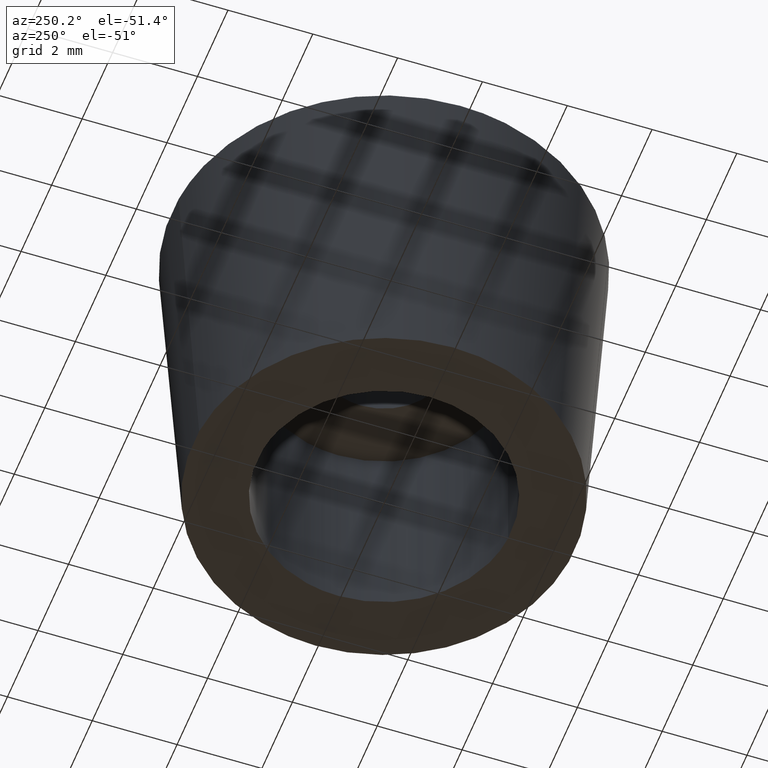
[diagram: clean part render]
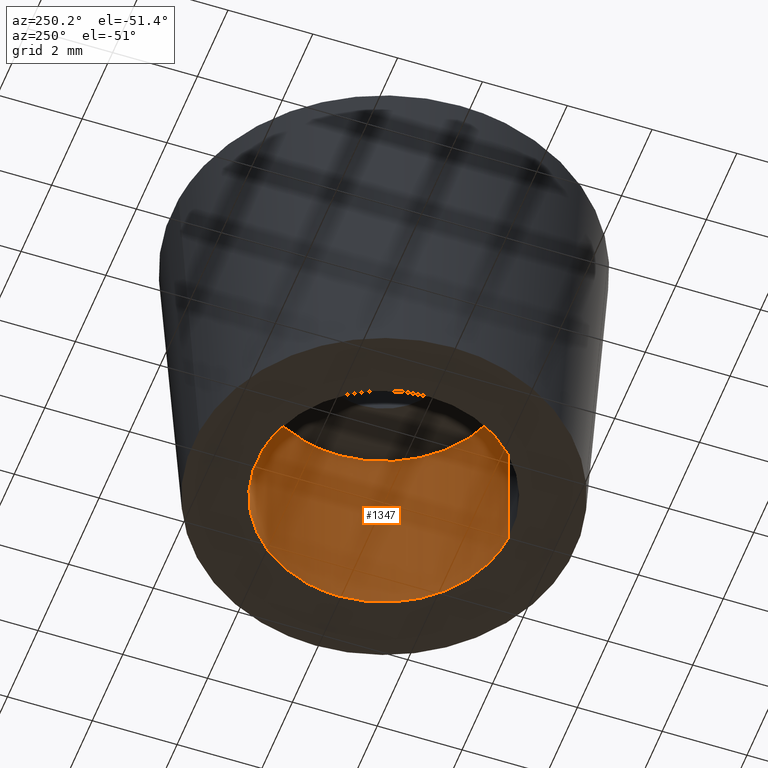
[diagram: same view with one face highlighted and labeled with its STEP entity id]
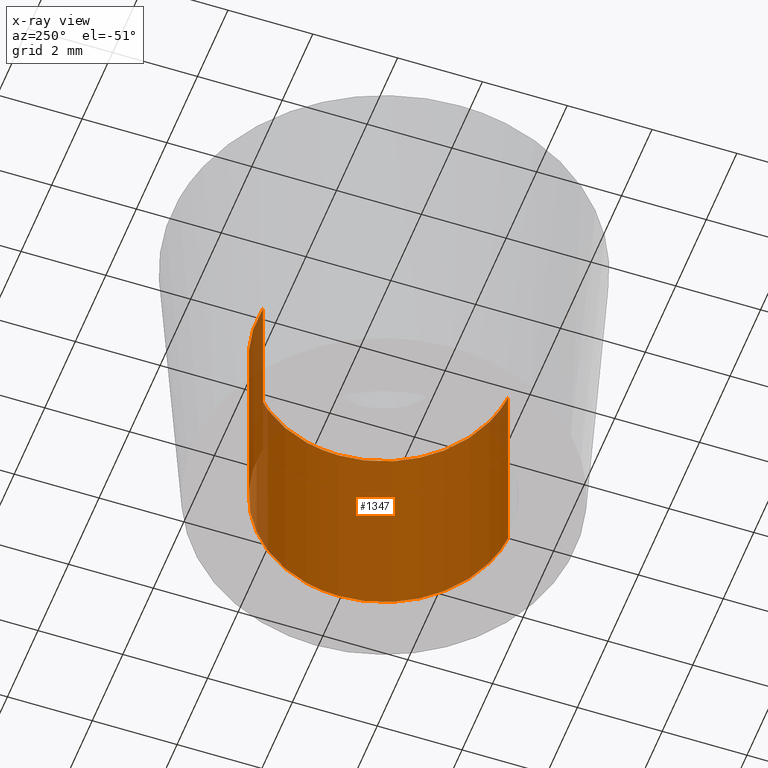
[diagram: x-ray of the same camera — body ghosted, the highlighted face saturated]
A machine part, auxiliary view. The second image highlights one B-rep face of the part: STEP entity #1347.
The next image is the same camera in x-ray: the body ghosted, the highlighted face saturated — about 7% of this face is hidden behind the body in this view.
In plain terms, the highlighted face is a freeform B-spline surface patch.
Its self-contained STEP definition (entity closure, byte-faithful):
#1245=CARTESIAN_POINT('',(-0.354102703970275,2.979028579091000,5.125000000000002));
#1246=CARTESIAN_POINT('',(-0.268844185913933,2.989162846345817,5.125000000000001));
#1247=CARTESIAN_POINT('',(-0.183145618604571,2.994404395265600,5.125000000000001));
#1248=CARTESIAN_POINT('',(2.811258776661029,3.177550013870171,5.125000000000001));
#1249=CARTESIAN_POINT('',(2.994404395265600,0.183145618604571,5.125000000000001));
#1250=CARTESIAN_POINT('',(3.177550013870171,-2.811258776661029,5.125000000000001));
#1251=CARTESIAN_POINT('',(0.183145618604571,-2.994404395265600,5.125000000000001));
#1252=CARTESIAN_POINT('',(-0.354102703970275,2.979028579091000,-0.128125000000000));
#1253=CARTESIAN_POINT('',(-0.268844185913933,2.989162846345817,-0.128125000000000));
#1254=CARTESIAN_POINT('',(-0.183145618604571,2.994404395265600,-0.128125000000000));
#1255=CARTESIAN_POINT('',(2.811258776661029,3.177550013870171,-0.128125000000000));
#1256=CARTESIAN_POINT('',(2.994404395265600,0.183145618604571,-0.128125000000000));
#1257=CARTESIAN_POINT('',(3.177550013870171,-2.811258776661029,-0.128125000000000));
#1258=CARTESIAN_POINT('',(0.183145618604571,-2.994404395265600,-0.128125000000000));
#1266=(BOUNDED_SURFACE()B_SPLINE_SURFACE(2,1,((#1245,#1252),(#1246,#1253),(#1247,#1254),(#1248,#1255),(#1249,#1256),(#1250,#1257),(#1251,#1258)),.UNSPECIFIED.,.F.,.F.,.U.)B_SPLINE_SURFACE_WITH_KNOTS((3,2,2,3),(2,2),(0.0,0.198822509939086,5.169385258416225,10.139948006893370),(0.0,5.253125000000002),.UNSPECIFIED.)GEOMETRIC_REPRESENTATION_ITEM()RATIONAL_B_SPLINE_SURFACE(((0.977505800795127,0.977505800795127),(0.988284271247462,0.988284271247462),(1.0,1.0),(0.707106781186548,0.707106781186548),(1.0,1.0),(0.707106781186548,0.707106781186548),(1.0,1.0)))REPRESENTATION_ITEM('')SURFACE());
#1267=CARTESIAN_POINT('',(-0.354099495451284,2.979028960468613,-5.969898E-015));
#1268=VERTEX_POINT('',#1267);
#1269=CARTESIAN_POINT('',(3.0,0.0,0.0));
#1270=VERTEX_POINT('',#1269);
#1271=CARTESIAN_POINT('',(-0.354099495451284,2.979028960468613,-5.969898E-015));
#1272=CARTESIAN_POINT('',(-0.177670737736467,3.0,0.0));
#1273=CARTESIAN_POINT('',(0.0,3.0,0.0));
#1274=CARTESIAN_POINT('',(3.0,3.0,0.0));
#1275=CARTESIAN_POINT('',(3.0,0.0,0.0));
#1283=(BOUNDED_CURVE()B_SPLINE_CURVE(2,(#1271,#1272,#1273,#1274,#1275),.UNSPECIFIED.,.F.,.U.)B_SPLINE_CURVE_WITH_KNOTS((3,2,3),(0.229562655538124,0.250000000000000,0.500000000000000),.UNSPECIFIED.)CURVE()GEOMETRIC_REPRESENTATION_ITEM()RATIONAL_B_SPLINE_CURVE((0.956027110959706,0.976056161586248,1.0,0.707106781186548,1.0))REPRESENTATION_ITEM(''));
#1284=EDGE_CURVE('',#1268,#1270,#1283,.T.);
#1285=ORIENTED_EDGE('',*,*,#1284,.T.);
#1286=CARTESIAN_POINT('',(0.183142456747576,-2.994404588649708,-6.543377E-015));
#1287=VERTEX_POINT('',#1286);
#1288=CARTESIAN_POINT('',(3.0,0.0,0.0));
#1289=CARTESIAN_POINT('',(2.999999999999999,-2.822121186223181,0.0));
#1290=CARTESIAN_POINT('',(0.183142456747576,-2.994404588649708,-6.543377E-015));
#1298=(BOUNDED_CURVE()B_SPLINE_CURVE(2,(#1288,#1289,#1290),.UNSPECIFIED.,.F.,.U.)B_SPLINE_CURVE_WITH_KNOTS((3,3),(0.500000000000000,0.739333144437917),.UNSPECIFIED.)CURVE()GEOMETRIC_REPRESENTATION_ITEM()RATIONAL_B_SPLINE_CURVE((1.0,0.719603779827335,0.976072432154112))REPRESENTATION_ITEM(''));
#1299=EDGE_CURVE('',#1270,#1287,#1298,.T.);
#1300=ORIENTED_EDGE('',*,*,#1299,.T.);
#1301=CARTESIAN_POINT('',(0.183142495778265,-2.994404586262570,4.999999999999999));
#1302=VERTEX_POINT('',#1301);
#1303=CARTESIAN_POINT('',(0.183142495778265,-2.994404586262570,4.999999999999999));
#1304=CARTESIAN_POINT('',(0.183142456747576,-2.994404588649708,-6.543377E-015));
#1305=QUASI_UNIFORM_CURVE('',1,(#1303,#1304),.UNSPECIFIED.,.F.,.U.);
#1306=EDGE_CURVE('',#1302,#1287,#1305,.T.);
#1307=ORIENTED_EDGE('',*,*,#1306,.F.);
#1308=CARTESIAN_POINT('',(3.0,0.0,5.0));
#1309=VERTEX_POINT('',#1308);
#1310=CARTESIAN_POINT('',(3.0,0.0,5.0));
#1311=CARTESIAN_POINT('',(3.000000000000001,-2.822121149369394,5.0));
#1312=CARTESIAN_POINT('',(0.183142495778265,-2.994404586262570,4.999999999999999));
#1320=(BOUNDED_CURVE()B_SPLINE_CURVE(2,(#1310,#1311,#1312),.UNSPECIFIED.,.F.,.U.)B_SPLINE_CURVE_WITH_KNOTS((3,3),(0.500000000000000,0.739333142188848),.UNSPECIFIED.)CURVE()GEOMETRIC_REPRESENTATION_ITEM()RATIONAL_B_SPLINE_CURVE((1.0,0.719603782462283,0.976072427333922))REPRESENTATION_ITEM(''));
#1321=EDGE_CURVE('',#1309,#1302,#1320,.T.);
#1322=ORIENTED_EDGE('',*,*,#1321,.F.);
#1323=CARTESIAN_POINT('',(-0.354099535051968,2.979028955761558,5.0));
#1324=VERTEX_POINT('',#1323);
#1325=CARTESIAN_POINT('',(-0.354099535051968,2.979028955761558,5.0));
#1326=CARTESIAN_POINT('',(-0.177670757746130,3.0,5.0));
#1327=CARTESIAN_POINT('',(0.0,3.0,5.0));
#1328=CARTESIAN_POINT('',(3.0,3.0,5.000000000000001));
#1329=CARTESIAN_POINT('',(3.0,0.0,5.0));
#1337=(BOUNDED_CURVE()B_SPLINE_CURVE(2,(#1325,#1326,#1327,#1328,#1329),.UNSPECIFIED.,.F.,.U.)B_SPLINE_CURVE_WITH_KNOTS((3,2,3),(0.229562653291538,0.250000000000000,0.500000000000000),.UNSPECIFIED.)CURVE()GEOMETRIC_REPRESENTATION_ITEM()RATIONAL_B_SPLINE_CURVE((0.956027106556297,0.976056158954208,1.0,0.707106781186548,1.0))REPRESENTATION_ITEM(''));
#1338=EDGE_CURVE('',#1324,#1309,#1337,.T.);
#1339=ORIENTED_EDGE('',*,*,#1338,.F.);
#1340=CARTESIAN_POINT('',(-0.354099535051968,2.979028955761558,5.0));
#1341=CARTESIAN_POINT('',(-0.354099495451284,2.979028960468613,-5.969898E-015));
#1342=QUASI_UNIFORM_CURVE('',1,(#1340,#1341),.UNSPECIFIED.,.F.,.U.);
#1343=EDGE_CURVE('',#1324,#1268,#1342,.T.);
#1344=ORIENTED_EDGE('',*,*,#1343,.T.);
#1345=EDGE_LOOP('',(#1285,#1300,#1307,#1322,#1339,#1344));
#1346=FACE_OUTER_BOUND('',#1345,.T.);
#1347=ADVANCED_FACE('',(#1346),#1266,.F.);